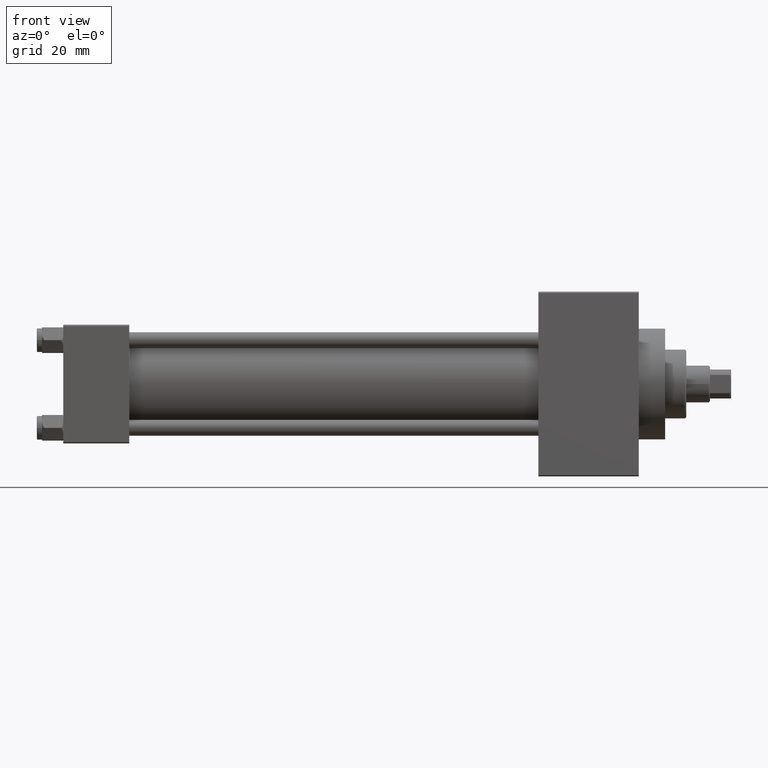
[diagram: clean part render]
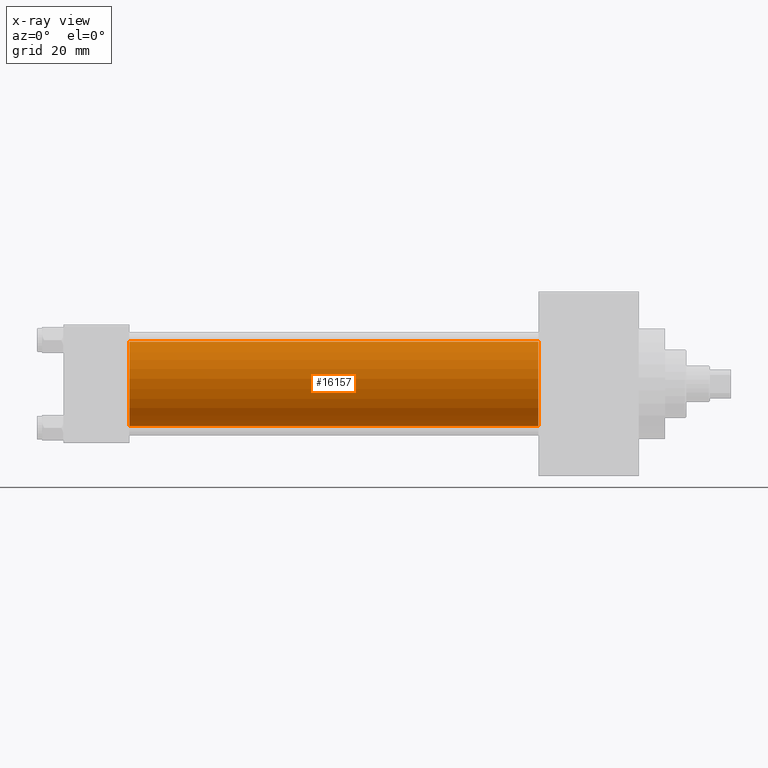
[diagram: x-ray — body ghosted, one internal face saturated and labeled with its STEP entity id]
A machine part, front view, then the same camera in x-ray: the body is ghosted and one INTERNAL B-rep face — a face not visible from any outside direction — is saturated and labeled: STEP entity #16157.
In plain terms, the highlighted cylindrical surface (partial cylindrical patch) has radius 16 mm, axis along (-1, -0, -0).
Its self-contained STEP definition (entity closure, byte-faithful):
#532 = AXIS2_PLACEMENT_3D ( 'NONE', #26118, #11401, #7166 ) ;
#1758 = CARTESIAN_POINT ( 'NONE',  ( 180.0000000000000000, -6.426503353294456087E-16, -16.00000000000000000 ) ) ;
#1916 = CARTESIAN_POINT ( 'NONE',  ( 25.00000000000000000, -2.602085213965210642E-15, 16.00000000000000000 ) ) ;
#3426 = DIRECTION ( 'NONE',  ( 0.000000000000000000, 0.000000000000000000, -1.000000000000000000 ) ) ;
#6102 = LINE ( 'NONE', #24553, #12463 ) ;
#7166 = DIRECTION ( 'NONE',  ( 0.000000000000000000, 0.000000000000000000, 1.000000000000000000 ) ) ;
#8806 = EDGE_CURVE ( 'NONE', #16339, #26880, #31182, .T. ) ;
#9901 = ORIENTED_EDGE ( 'NONE', *, *, #43749, .F. ) ;
#10027 = EDGE_LOOP ( 'NONE', ( #35788, #44576, #9901, #25898 ) ) ;
#11401 = DIRECTION ( 'NONE',  ( -1.000000000000000000, -0.000000000000000000, -0.000000000000000000 ) ) ;
#12351 = AXIS2_PLACEMENT_3D ( 'NONE', #18368, #33591, #26825 ) ;
#12463 = VECTOR ( 'NONE', #21313, 1000.000000000000000 ) ;
#14925 = DIRECTION ( 'NONE',  ( 1.000000000000000000, 0.000000000000000000, 0.000000000000000000 ) ) ;
#15138 = FACE_OUTER_BOUND ( 'NONE', #10027, .T. ) ;
#15469 = EDGE_CURVE ( 'NONE', #17932, #15916, #6102, .T. ) ;
#15916 = VERTEX_POINT ( 'NONE', #25721 ) ;
#16157 = ADVANCED_FACE ( 'NONE', ( #15138 ), #33866, .F. ) ;
#16339 = VERTEX_POINT ( 'NONE', #19856 ) ;
#17932 = VERTEX_POINT ( 'NONE', #1758 ) ;
#18368 = CARTESIAN_POINT ( 'NONE',  ( 180.0000000000000000, -2.602085213965210642E-15, 0.000000000000000000 ) ) ;
#18652 = CARTESIAN_POINT ( 'NONE',  ( 25.00000000000000000, -2.602085213965210642E-15, 0.000000000000000000 ) ) ;
#19453 = CARTESIAN_POINT ( 'NONE',  ( 180.0000000000000000, -2.602085213965210642E-15, 16.00000000000000000 ) ) ;
#19511 = VECTOR ( 'NONE', #37688, 1000.000000000000000 ) ;
#19537 = CIRCLE ( 'NONE', #12351, 16.00000000000000000 ) ;
#19856 = CARTESIAN_POINT ( 'NONE',  ( 180.0000000000000000, -2.602085213965210642E-15, 16.00000000000000000 ) ) ;
#21040 = AXIS2_PLACEMENT_3D ( 'NONE', #18652, #14925, #3426 ) ;
#21313 = DIRECTION ( 'NONE',  ( -1.000000000000000000, -0.000000000000000000, -0.000000000000000000 ) ) ;
#24553 = CARTESIAN_POINT ( 'NONE',  ( 180.0000000000000000, -6.426503353294456087E-16, -16.00000000000000000 ) ) ;
#25721 = CARTESIAN_POINT ( 'NONE',  ( 25.00000000000000000, -6.426503353294456087E-16, -16.00000000000000000 ) ) ;
#25898 = ORIENTED_EDGE ( 'NONE', *, *, #8806, .F. ) ;
#26118 = CARTESIAN_POINT ( 'NONE',  ( 180.0000000000000000, -2.602085213965210642E-15, 0.000000000000000000 ) ) ;
#26825 = DIRECTION ( 'NONE',  ( 0.000000000000000000, 0.000000000000000000, -1.000000000000000000 ) ) ;
#26880 = VERTEX_POINT ( 'NONE', #1916 ) ;
#31182 = LINE ( 'NONE', #19453, #19511 ) ;
#33591 = DIRECTION ( 'NONE',  ( 1.000000000000000000, 0.000000000000000000, 0.000000000000000000 ) ) ;
#33866 = CYLINDRICAL_SURFACE ( 'NONE', #532, 16.00000000000000000 ) ;
#35788 = ORIENTED_EDGE ( 'NONE', *, *, #39078, .T. ) ;
#36140 = CIRCLE ( 'NONE', #21040, 16.00000000000000000 ) ;
#37688 = DIRECTION ( 'NONE',  ( -1.000000000000000000, -0.000000000000000000, -0.000000000000000000 ) ) ;
#39078 = EDGE_CURVE ( 'NONE', #16339, #17932, #19537, .T. ) ;
#43749 = EDGE_CURVE ( 'NONE', #26880, #15916, #36140, .T. ) ;
#44576 = ORIENTED_EDGE ( 'NONE', *, *, #15469, .T. ) ;